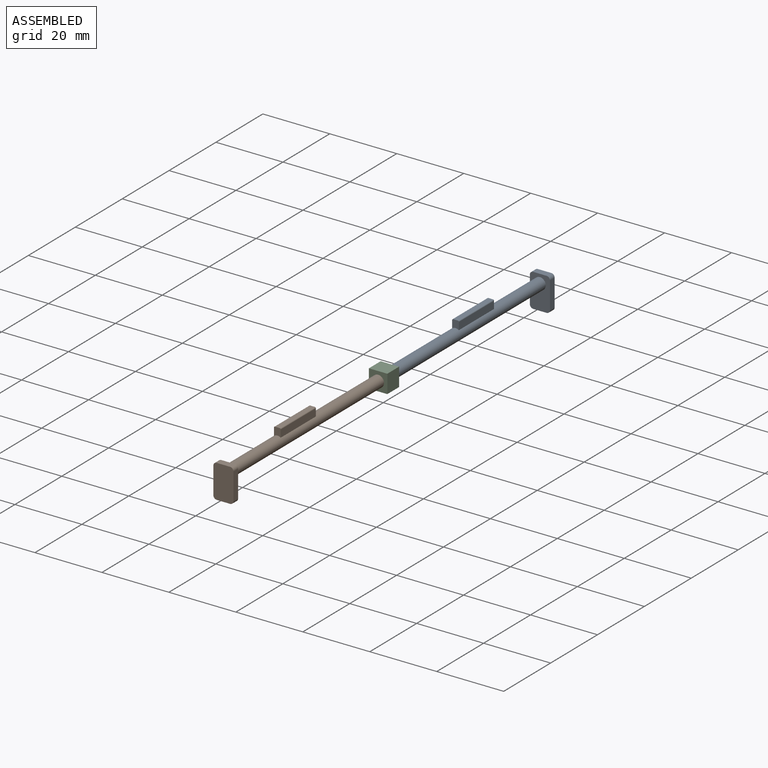
[diagram: assembled view]
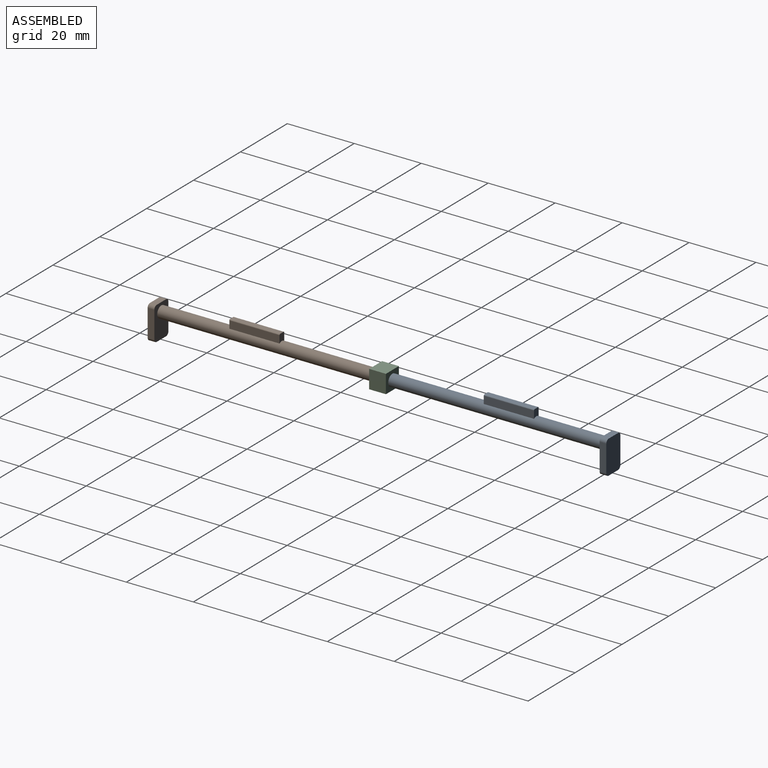
[diagram: assembled view, second angle]
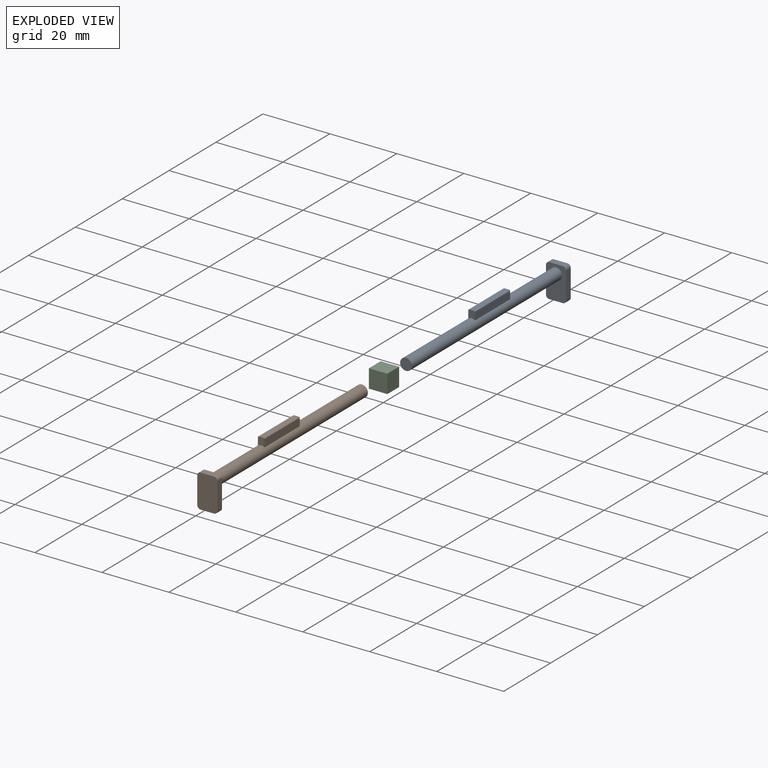
[diagram: exploded view]
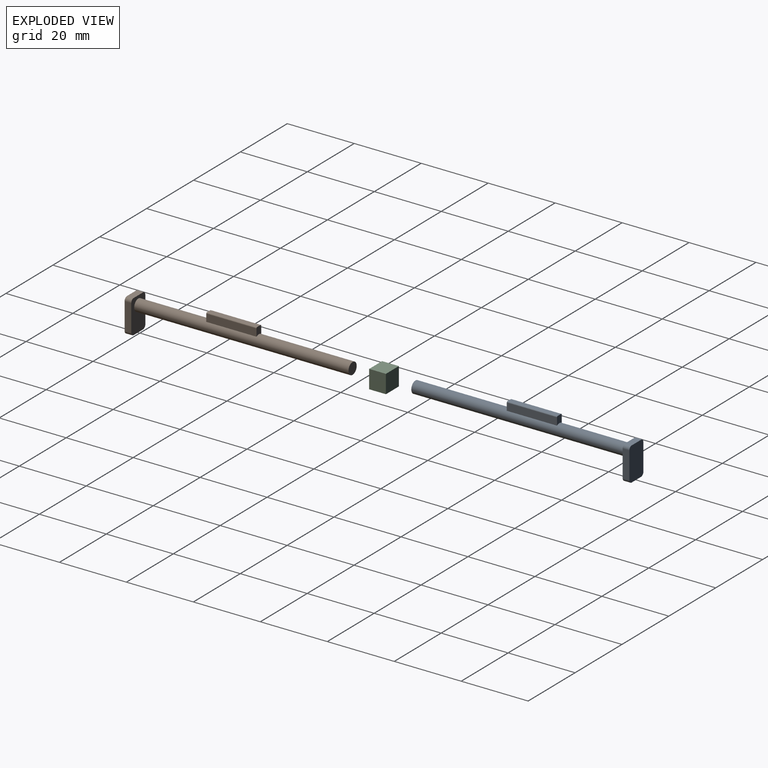
[diagram: exploded view, second angle]
ASSEMBLY  parts=3 mates=2
PART A: 19 faces, bbox 6x66x11.3 mm
  f0: plane 4x2mm, normal (0,0,1), area 8mm2, adj f1,f7,f8,f9
  f1: cylinder r=1mm len=2mm, axis (0,-1,0), area 3.1mm2, adj f0,f2,f8,f9
  f2: plane 8x2mm, normal (-1,0,0), area 16mm2, adj f1,f3,f8,f9
  f3: cylinder r=1mm len=2mm, axis (0,-1,0), area 3.1mm2, adj f2,f4,f8,f9
  f4: plane 4x2mm, normal (0,0,-1), area 8mm2, adj f3,f5,f8,f9
  f5: cylinder r=1mm len=2mm, axis (0,-1,0), area 3.1mm2, adj f4,f6,f8,f9
  f6: plane 8x2mm, normal (1,0,0), area 16mm2, adj f5,f7,f8,f9
  f7: cylinder r=1mm len=2mm, axis (0,-1,0), area 3.1mm2, adj f0,f6,f8,f9
  f8: plane 10x6mm, normal (0,1,0), area 59.1mm2, adj f0,f1,f2,f3,f4,f5,f6,f7
  f9: plane 10x6mm, normal (0,-1,0), area 49.5mm2, adj f0,f1,f2,f3,f4,f5,f6,f7
  f10: cylinder r=1.75mm len=64mm, axis (0,1,0), area 671.8mm2, adj f9,f11,f12,f16,f17,f18
  f11: plane 3.5x3.5mm, normal (0,-1,0), area 9.6mm2, adj f10
  f12: plane 15x2.21mm, normal (1,0,0), area 33.2mm2, adj f10,f13,f17,f18
  f13: cylinder r=0.3mm len=15mm, axis (0,1,0), area 7.1mm2, adj f12,f14,f17,f18
  f14: plane 15x1.4mm, normal (0,0,1), area 21mm2, adj f13,f15,f17,f18
  f15: cylinder r=0.3mm len=15mm, axis (0,1,0), area 7.1mm2, adj f14,f16,f17,f18
  f16: plane 15x2.21mm, normal (-1,0,0), area 33.2mm2, adj f10,f15,f17,f18
  f17: plane 2.51x2mm, normal (0,-1,0), area 4.6mm2, adj f10,f12,f13,f14,f15,f16
  f18: plane 2.51x2mm, normal (0,1,0), area 4.6mm2, adj f10,f12,f13,f14,f15,f16
PART B: same geometry as A
PART C: 10 faces, bbox 5x5.5x5.5 mm
  f0: plane 4.5x4.5mm, normal (-1,0,0), area 20.2mm2, adj f4,f6,f7,f9
  f1: plane 5.5x5.5mm, normal (1,0,0), area 30.3mm2, adj f2,f4,f7,f8
  f2: plane 5.5x5mm, normal (0,1,0), area 27.5mm2, adj f1,f3,f7,f8
  f3: plane 5.5x5.5mm, normal (-1,0,0), area 30.3mm2, adj f2,f4,f7,f8
  f4: plane 5.5x5mm, normal (0,-1,0), area 14mm2, adj f0,f1,f3,f5,f7,f8,f9
  f5: plane 4.5x4.5mm, normal (1,0,0), area 20.2mm2, adj f4,f6,f7,f9
  f6: plane 4.5x3mm, normal (0,-1,0), area 13.5mm2, adj f0,f5,f7,f9
  f7: plane 5.5x5mm, normal (0,0,1), area 14mm2, adj f0,f1,f2,f3,f4,f5,f6
  f8: plane 5.5x5mm, normal (0,0,-1), area 27.5mm2, adj f1,f2,f3,f4
  f9: plane 4.5x3mm, normal (0,0,1), area 13.5mm2, adj f0,f4,f5,f6
PLACE A rot(axis=(1,0,0),0deg) t=(15.96,41.86,4.31)mm
PLACE B rot(axis=(0,0,1),180deg) t=(-49.01,-91.14,4.31)mm
PLACE C rot(axis=(-0.71,-0.71,0),180deg) t=(-35.4,15.02,21.78)mm
MATE planar C.f3 <-> B.f10  axis (0,-1,0) through (-16.52,-27.14,19.03)mm
MATE planar A.f10 <-> C.f1  axis (0,-1,0) through (-16.52,-22.14,19.03)mm
